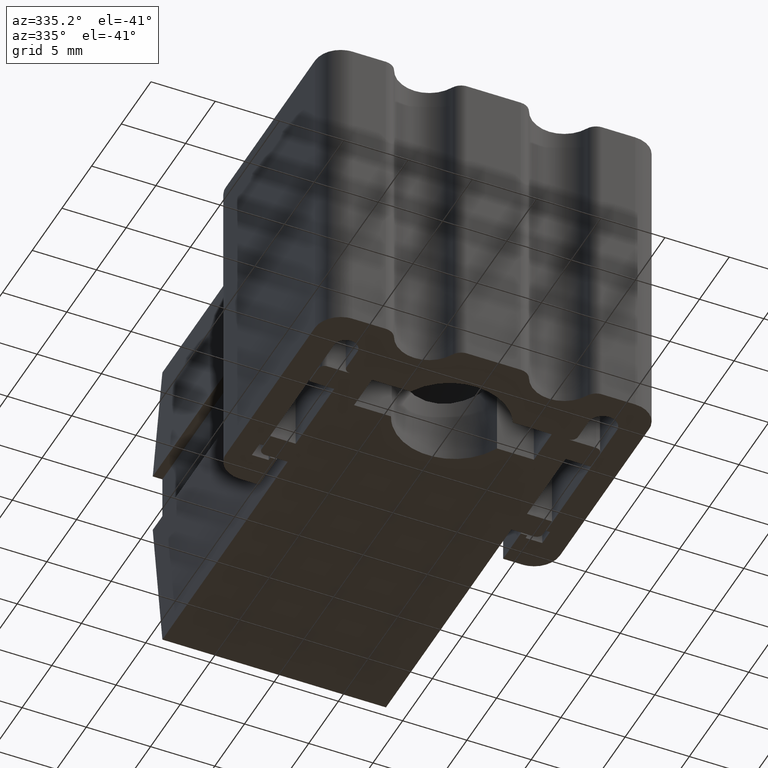
[diagram: clean part render]
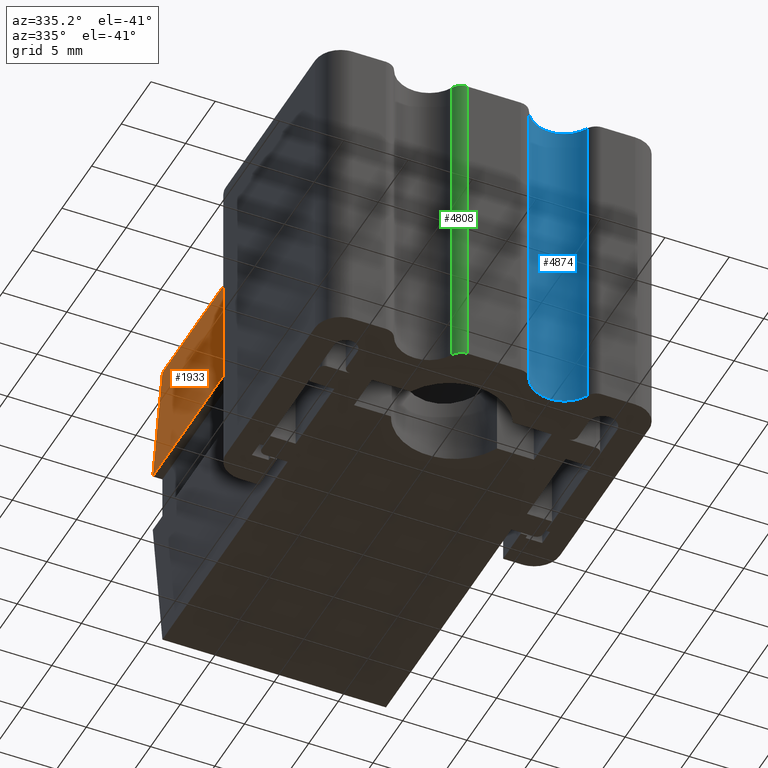
[diagram: same view with three faces highlighted in distinct colors, each labeled with its STEP entity id]
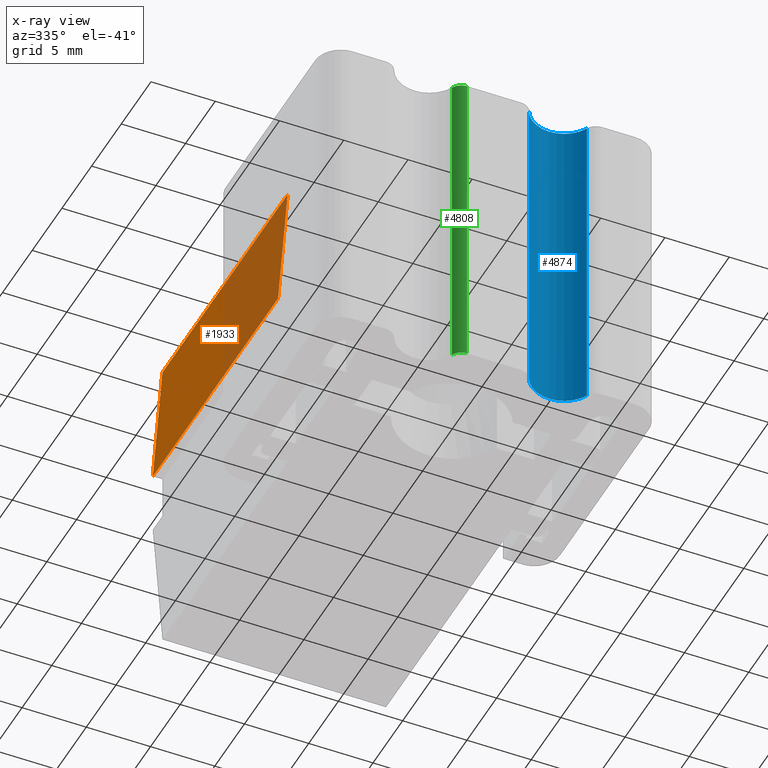
[diagram: x-ray of the same camera — body ghosted, the three highlighted faces saturated]
A machine part, auxiliary view with three faces highlighted in distinct colors.
The next image is the same camera in x-ray (body ghosted, the three faces saturated) — at least one of them is partly hidden behind the body in this view.
Their STEP definitions:

[orange] entity #1933 — the highlighted face is a freeform B-spline surface patch.
#1883=CARTESIAN_POINT('',(-9.450000448850890,8.900000422727320,2.500000118743600));
#1884=VERTEX_POINT('',#1883);
#1890=CARTESIAN_POINT('',(-9.450000448850890,30.000000422727350,2.500000118743600));
#1891=VERTEX_POINT('',#1890);
#1892=CARTESIAN_POINT('',(-9.450000448850890,30.000000422727350,2.500000118743600));
#1893=CARTESIAN_POINT('',(-9.450000448850890,8.900000422727320,2.500000118743600));
#1894=QUASI_UNIFORM_CURVE('',1,(#1892,#1893),.UNSPECIFIED.,.F.,.U.);
#1895=EDGE_CURVE('',#1891,#1884,#1894,.T.);
#1906=CARTESIAN_POINT('',(-9.487462963257546,7.846055539007235,2.000499926654867));
#1907=CARTESIAN_POINT('',(-8.662537892115623,7.846055539007235,12.999500875213810));
#1908=CARTESIAN_POINT('',(-9.487462963257546,31.053944363203939,2.000499926654867));
#1909=CARTESIAN_POINT('',(-8.662537892115623,31.053944363203939,12.999500875213810));
#1910=B_SPLINE_SURFACE_WITH_KNOTS('',1,1,((#1906,#1908),(#1907,#1909)),.UNSPECIFIED.,.F.,.F.,.U.,(2,2),(2,2),(0.0,11.029892258739380),(0.0,23.207888824196701),.UNSPECIFIED.);
#1911=CARTESIAN_POINT('',(-8.700000413227800,8.900000422727320,12.500000593718100));
#1912=VERTEX_POINT('',#1911);
#1913=CARTESIAN_POINT('',(-8.700000413227800,8.900000422727320,12.500000593718100));
#1914=CARTESIAN_POINT('',(-9.450000448850890,8.900000422727320,2.500000118743600));
#1915=QUASI_UNIFORM_CURVE('',1,(#1913,#1914),.UNSPECIFIED.,.F.,.U.);
#1916=EDGE_CURVE('',#1912,#1884,#1915,.T.);
#1917=ORIENTED_EDGE('',*,*,#1916,.F.);
#1918=CARTESIAN_POINT('',(-8.700000413227800,30.000000422727350,12.500000593718100));
#1919=VERTEX_POINT('',#1918);
#1920=CARTESIAN_POINT('',(-8.700000413227800,30.000000422727350,12.500000593718100));
#1921=CARTESIAN_POINT('',(-8.700000413227800,8.900000422727320,12.500000593718100));
#1922=QUASI_UNIFORM_CURVE('',1,(#1920,#1921),.UNSPECIFIED.,.F.,.U.);
#1923=EDGE_CURVE('',#1919,#1912,#1922,.T.);
#1924=ORIENTED_EDGE('',*,*,#1923,.F.);
#1925=CARTESIAN_POINT('',(-8.700000413227800,30.000000422727350,12.500000593718100));
#1926=CARTESIAN_POINT('',(-9.450000448850890,30.000000422727350,2.500000118743600));
#1927=QUASI_UNIFORM_CURVE('',1,(#1925,#1926),.UNSPECIFIED.,.F.,.U.);
#1928=EDGE_CURVE('',#1919,#1891,#1927,.T.);
#1929=ORIENTED_EDGE('',*,*,#1928,.T.);
#1930=ORIENTED_EDGE('',*,*,#1895,.T.);
#1931=EDGE_LOOP('',(#1917,#1924,#1929,#1930));
#1932=FACE_OUTER_BOUND('',#1931,.T.);
#1933=ADVANCED_FACE('',(#1932),#1910,.T.);

[blue] entity #4874 — the highlighted face is a freeform B-spline surface patch.
#3459=CARTESIAN_POINT('',(7.508770113910090,-6.528571738661770,-12.500001187436879));
#3460=VERTEX_POINT('',#3459);
#3474=CARTESIAN_POINT('',(2.991230384812790,-6.528571738661640,-12.500001187436879));
#3475=VERTEX_POINT('',#3474);
#3476=CARTESIAN_POINT('',(7.508770113910090,-6.528571738661770,-12.500001187436879));
#3477=CARTESIAN_POINT('',(6.831139154545648,-5.100000242236965,-12.500001187436883));
#3478=CARTESIAN_POINT('',(5.250000249361610,-5.100000242236965,-12.500001187436879));
#3479=CARTESIAN_POINT('',(3.668861344177552,-5.100000242236965,-12.500001187436883));
#3480=CARTESIAN_POINT('',(2.991230384812792,-6.528571738661641,-12.500001187436879));
#3488=(BOUNDED_CURVE()B_SPLINE_CURVE(2,(#3476,#3477,#3478,#3479,#3480),.UNSPECIFIED.,.F.,.U.)B_SPLINE_CURVE_WITH_KNOTS((3,2,3),(0.0,0.500000000000000,1.0),.UNSPECIFIED.)CURVE()GEOMETRIC_REPRESENTATION_ITEM()RATIONAL_B_SPLINE_CURVE((1.0,0.845154254728550,1.0,0.845154254728550,1.0))REPRESENTATION_ITEM(''));
#3489=EDGE_CURVE('',#3460,#3475,#3488,.T.);
#4117=CARTESIAN_POINT('',(2.991230384812790,-6.528571738661640,12.500000000000000));
#4118=VERTEX_POINT('',#4117);
#4132=CARTESIAN_POINT('',(7.508770113910090,-6.528571738661770,12.500000000000000));
#4133=VERTEX_POINT('',#4132);
#4134=CARTESIAN_POINT('',(7.508770113910090,-6.528571738661770,12.500000000000000));
#4135=CARTESIAN_POINT('',(6.831139154545648,-5.100000242236965,12.500000000000007));
#4136=CARTESIAN_POINT('',(5.250000249361610,-5.100000242236965,12.500000000000000));
#4137=CARTESIAN_POINT('',(3.668861344177552,-5.100000242236965,12.500000000000007));
#4138=CARTESIAN_POINT('',(2.991230384812792,-6.528571738661641,12.500000000000000));
#4146=(BOUNDED_CURVE()B_SPLINE_CURVE(2,(#4134,#4135,#4136,#4137,#4138),.UNSPECIFIED.,.F.,.U.)B_SPLINE_CURVE_WITH_KNOTS((3,2,3),(0.0,0.500000000000000,1.0),.UNSPECIFIED.)CURVE()GEOMETRIC_REPRESENTATION_ITEM()RATIONAL_B_SPLINE_CURVE((1.0,0.845154254728550,1.0,0.845154254728550,1.0))REPRESENTATION_ITEM(''));
#4147=EDGE_CURVE('',#4133,#4118,#4146,.T.);
#4840=CARTESIAN_POINT('',(2.991230384812790,-6.528571738661640,12.500000000000000));
#4841=CARTESIAN_POINT('',(2.991230384812790,-6.528571738661640,-12.500001187436879));
#4842=QUASI_UNIFORM_CURVE('',1,(#4840,#4841),.UNSPECIFIED.,.F.,.U.);
#4843=EDGE_CURVE('',#4118,#3475,#4842,.T.);
#4850=CARTESIAN_POINT('',(7.536042821553892,-6.588066592474637,13.125000029685930));
#4851=CARTESIAN_POINT('',(7.536042821553892,-6.588066592474637,-13.140626217864950));
#4852=CARTESIAN_POINT('',(5.152076258962167,-1.202487790401632,13.125000029685923));
#4853=CARTESIAN_POINT('',(5.152076258962167,-1.202487790401632,-13.140626217864950));
#4854=CARTESIAN_POINT('',(2.934057406369603,-6.658507216176934,13.125000029685930));
#4855=CARTESIAN_POINT('',(2.934057406369603,-6.658507216176934,-13.140626217864950));
#4863=(BOUNDED_SURFACE()B_SPLINE_SURFACE(1,2,((#4850,#4852,#4854),(#4851,#4853,#4855)),.UNSPECIFIED.,.F.,.F.,.U.)B_SPLINE_SURFACE_WITH_KNOTS((2,2),(3,3),(0.0,26.265626247550880),(0.0,6.618855926335709),.UNSPECIFIED.)GEOMETRIC_REPRESENTATION_ITEM()RATIONAL_B_SPLINE_SURFACE(((1.0,0.390731128489274,1.0),(1.0,0.390731128489274,1.0)))REPRESENTATION_ITEM('')SURFACE());
#4864=ORIENTED_EDGE('',*,*,#3489,.F.);
#4865=CARTESIAN_POINT('',(7.508770113910090,-6.528571738661770,12.500000000000000));
#4866=CARTESIAN_POINT('',(7.508770113910090,-6.528571738661770,-12.500001187436879));
#4867=QUASI_UNIFORM_CURVE('',1,(#4865,#4866),.UNSPECIFIED.,.F.,.U.);
#4868=EDGE_CURVE('',#4133,#3460,#4867,.T.);
#4869=ORIENTED_EDGE('',*,*,#4868,.F.);
#4870=ORIENTED_EDGE('',*,*,#4147,.T.);
#4871=ORIENTED_EDGE('',*,*,#4843,.T.);
#4872=EDGE_LOOP('',(#4864,#4869,#4870,#4871));
#4873=FACE_OUTER_BOUND('',#4872,.T.);
#4874=ADVANCED_FACE('',(#4873),#4863,.F.);

[green] entity #4808 — the highlighted face is a freeform B-spline surface patch.
#3506=CARTESIAN_POINT('',(-2.087722438993495,-7.100000337231900,-12.500001187436879));
#3507=VERTEX_POINT('',#3506);
#3513=CARTESIAN_POINT('',(-2.991230384813120,-6.528571738661750,-12.500001187436879));
#3514=VERTEX_POINT('',#3513);
#3515=CARTESIAN_POINT('',(-2.991230384813122,-6.528571738661751,-12.500001187436879));
#3516=CARTESIAN_POINT('',(-2.720178001067289,-7.100000337231842,-12.500001187436885));
#3517=CARTESIAN_POINT('',(-2.087722438993495,-7.100000337231900,-12.500001187436879));
#3525=(BOUNDED_CURVE()B_SPLINE_CURVE(2,(#3515,#3516,#3517),.UNSPECIFIED.,.F.,.U.)CURVE()GEOMETRIC_REPRESENTATION_ITEM()QUASI_UNIFORM_CURVE()RATIONAL_B_SPLINE_CURVE((1.0,0.845154254728480,1.0))REPRESENTATION_ITEM(''));
#3526=EDGE_CURVE('',#3514,#3507,#3525,.T.);
#4078=CARTESIAN_POINT('',(-2.991230384813120,-6.528571738661750,12.500000000000000));
#4079=VERTEX_POINT('',#4078);
#4095=CARTESIAN_POINT('',(-2.087722438993495,-7.100000337231900,12.500000000000000));
#4096=VERTEX_POINT('',#4095);
#4097=CARTESIAN_POINT('',(-2.991230384813122,-6.528571738661751,12.500000000000000));
#4098=CARTESIAN_POINT('',(-2.720178001067289,-7.100000337231842,12.500000000000005));
#4099=CARTESIAN_POINT('',(-2.087722438993495,-7.100000337231900,12.500000000000000));
#4107=(BOUNDED_CURVE()B_SPLINE_CURVE(2,(#4097,#4098,#4099),.UNSPECIFIED.,.F.,.U.)CURVE()GEOMETRIC_REPRESENTATION_ITEM()QUASI_UNIFORM_CURVE()RATIONAL_B_SPLINE_CURVE((1.0,0.845154254728480,1.0))REPRESENTATION_ITEM(''));
#4108=EDGE_CURVE('',#4079,#4096,#4107,.T.);
#4774=CARTESIAN_POINT('',(-2.991230384813120,-6.528571738661750,12.500000000000000));
#4775=CARTESIAN_POINT('',(-2.991230384813120,-6.528571738661750,-12.500001187436879));
#4776=QUASI_UNIFORM_CURVE('',1,(#4774,#4775),.UNSPECIFIED.,.F.,.U.);
#4777=EDGE_CURVE('',#4079,#3514,#4776,.T.);
#4784=CARTESIAN_POINT('',(-3.004782556936628,-6.498749377599207,13.125000029685930));
#4785=CARTESIAN_POINT('',(-3.004782556936628,-6.498749377599207,-13.140626217864950));
#4786=CARTESIAN_POINT('',(-2.727869837694338,-7.135605031183515,13.125000029685927));
#4787=CARTESIAN_POINT('',(-2.727869837694338,-7.135605031183515,-13.140626217864954));
#4788=CARTESIAN_POINT('',(-2.034404071239018,-7.098577901467650,13.125000029685921));
#4789=CARTESIAN_POINT('',(-2.034404071239018,-7.098577901467650,-13.140626217864952));
#4797=(BOUNDED_SURFACE()B_SPLINE_SURFACE(1,2,((#4784,#4786,#4788),(#4785,#4787,#4789)),.UNSPECIFIED.,.F.,.F.,.U.)B_SPLINE_SURFACE_WITH_KNOTS((2,2),(3,3),(0.0,26.265626247550880),(0.0,0.978391466447152),.UNSPECIFIED.)GEOMETRIC_REPRESENTATION_ITEM()RATIONAL_B_SPLINE_SURFACE(((1.0,0.818132209414871,0.992140207489918),(1.0,0.818132209414871,0.992140207489918)))REPRESENTATION_ITEM('')SURFACE());
#4798=ORIENTED_EDGE('',*,*,#3526,.T.);
#4799=CARTESIAN_POINT('',(-2.087722438993495,-7.100000337231900,12.500000000000000));
#4800=CARTESIAN_POINT('',(-2.087722438993495,-7.100000337231900,-12.500001187436879));
#4801=QUASI_UNIFORM_CURVE('',1,(#4799,#4800),.UNSPECIFIED.,.F.,.U.);
#4802=EDGE_CURVE('',#4096,#3507,#4801,.T.);
#4803=ORIENTED_EDGE('',*,*,#4802,.F.);
#4804=ORIENTED_EDGE('',*,*,#4108,.F.);
#4805=ORIENTED_EDGE('',*,*,#4777,.T.);
#4806=EDGE_LOOP('',(#4798,#4803,#4804,#4805));
#4807=FACE_OUTER_BOUND('',#4806,.T.);
#4808=ADVANCED_FACE('',(#4807),#4797,.T.);